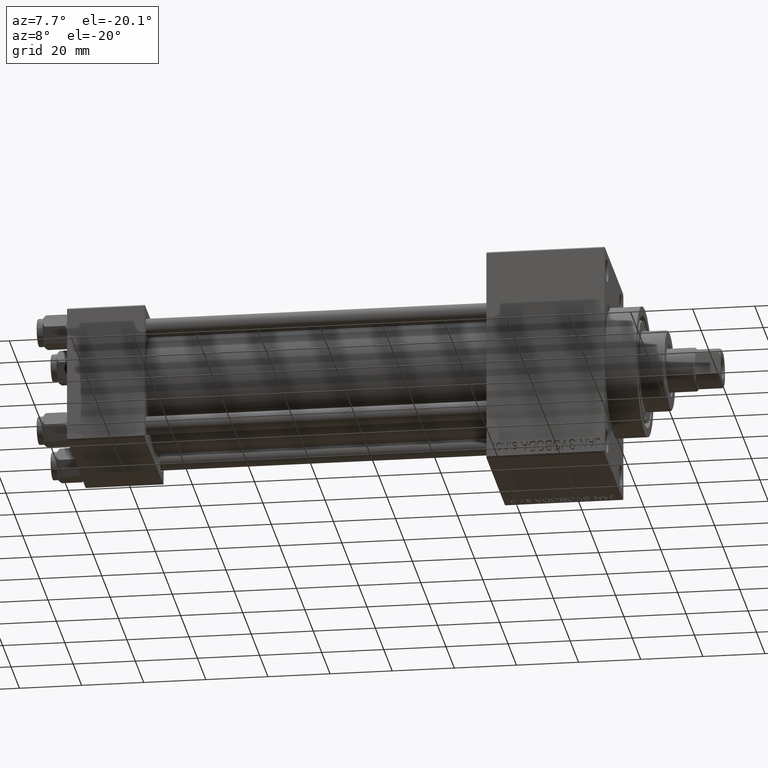
[diagram: clean part render]
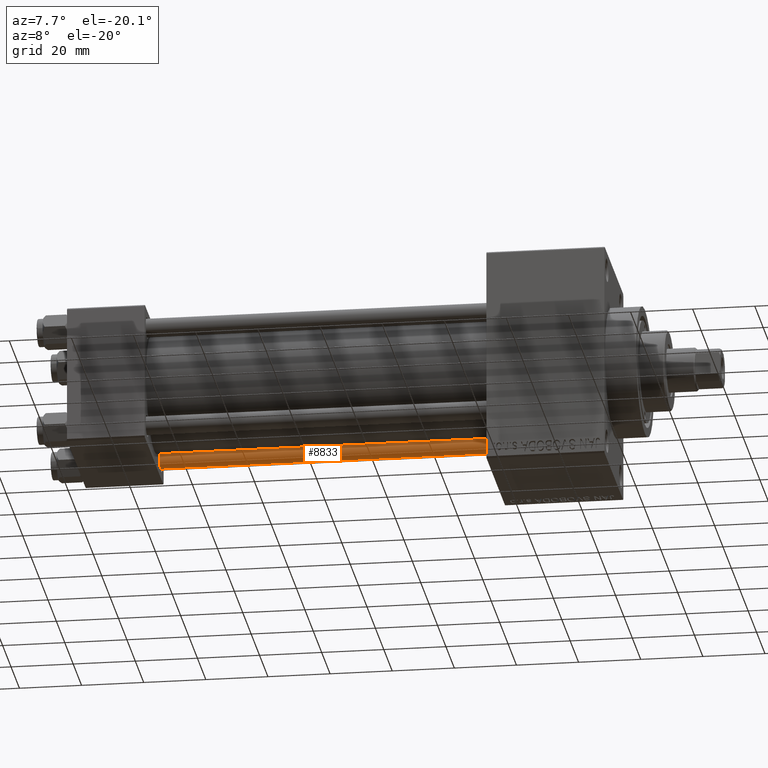
[diagram: same view with one face highlighted and labeled with its STEP entity id]
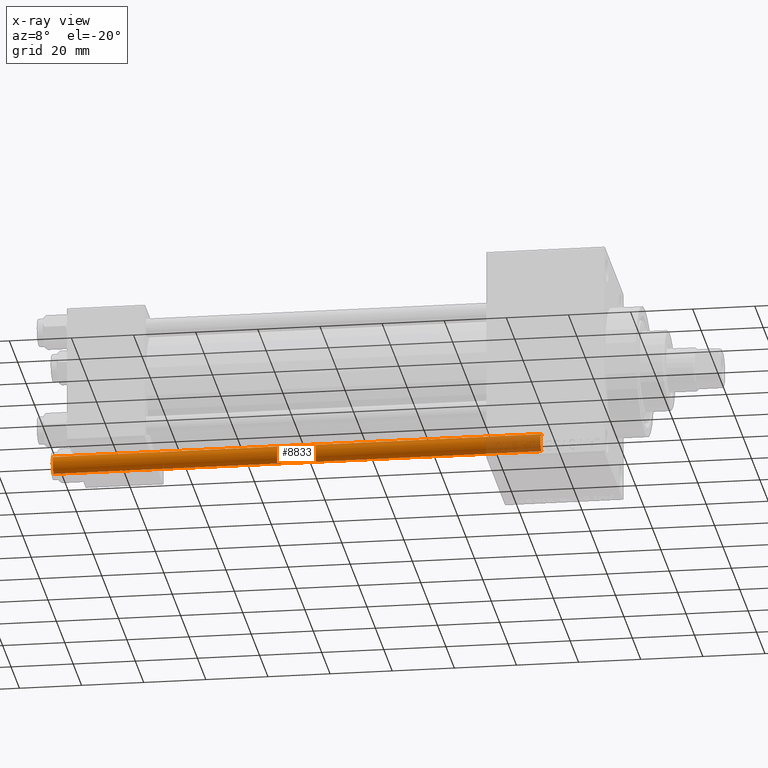
[diagram: x-ray of the same camera — body ghosted, the highlighted face saturated]
A machine part, auxiliary view. The second image highlights one B-rep face of the part: STEP entity #8833.
The next image is the same camera in x-ray: the body ghosted, the highlighted face saturated — about 11% of this face is hidden behind the body in this view.
In plain terms, the highlighted cylindrical surface (edge-blend (fillet) strip) has radius 3 mm, axis along (1, -0, 0).
Its self-contained STEP definition (entity closure, byte-faithful):
#328 = CARTESIAN_POINT ( 'NONE',  ( 3.000000000000000444, 3.673940397442060361E-16, 0.5000000000000281997 ) ) ;
#1701 = CARTESIAN_POINT ( 'NONE',  ( 0.000000000000000000, 0.000000000000000000, 158.0000000000000000 ) ) ;
#1764 = CIRCLE ( 'NONE', #36162, 3.000000000000000444 ) ;
#3180 = ORIENTED_EDGE ( 'NONE', *, *, #39549, .T. ) ;
#3237 = CARTESIAN_POINT ( 'NONE',  ( -3.000000000000000444, 0.000000000000000000, 157.5000000000000000 ) ) ;
#3410 = AXIS2_PLACEMENT_3D ( 'NONE', #9085, #27983, #16019 ) ;
#4819 = FACE_OUTER_BOUND ( 'NONE', #7841, .T. ) ;
#5479 = VERTEX_POINT ( 'NONE', #3237 ) ;
#5750 = LINE ( 'NONE', #30853, #38729 ) ;
#7841 = EDGE_LOOP ( 'NONE', ( #27497, #3180, #42546, #25785 ) ) ;
#8508 = LINE ( 'NONE', #23099, #43315 ) ;
#8833 = ADVANCED_FACE ( 'NONE', ( #4819 ), #45034, .T. ) ;
#9085 = CARTESIAN_POINT ( 'NONE',  ( 0.000000000000000000, 0.000000000000000000, 0.5000000000000281997 ) ) ;
#14566 = EDGE_CURVE ( 'NONE', #34220, #31174, #40079, .T. ) ;
#16019 = DIRECTION ( 'NONE',  ( 1.000000000000000000, 0.000000000000000000, 0.000000000000000000 ) ) ;
#19140 = DIRECTION ( 'NONE',  ( 0.000000000000000000, 0.000000000000000000, -1.000000000000000000 ) ) ;
#20458 = DIRECTION ( 'NONE',  ( -0.000000000000000000, -0.000000000000000000, -1.000000000000000000 ) ) ;
#21678 = AXIS2_PLACEMENT_3D ( 'NONE', #1701, #42556, #34472 ) ;
#21738 = CARTESIAN_POINT ( 'NONE',  ( 3.000000000000000444, 3.673940397442060361E-16, 157.5000000000000000 ) ) ;
#23099 = CARTESIAN_POINT ( 'NONE',  ( -3.000000000000000444, 0.000000000000000000, 158.0000000000000000 ) ) ;
#23226 = CARTESIAN_POINT ( 'NONE',  ( 0.000000000000000000, 0.000000000000000000, 157.5000000000000000 ) ) ;
#24209 = EDGE_CURVE ( 'NONE', #5479, #34220, #8508, .T. ) ;
#25785 = ORIENTED_EDGE ( 'NONE', *, *, #14566, .T. ) ;
#26705 = CARTESIAN_POINT ( 'NONE',  ( -3.000000000000000444, 0.000000000000000000, 0.5000000000000281997 ) ) ;
#27497 = ORIENTED_EDGE ( 'NONE', *, *, #37696, .F. ) ;
#27983 = DIRECTION ( 'NONE',  ( -0.000000000000000000, -0.000000000000000000, 1.000000000000000000 ) ) ;
#30853 = CARTESIAN_POINT ( 'NONE',  ( 3.000000000000000444, 3.673940397442060361E-16, 158.0000000000000000 ) ) ;
#31093 = DIRECTION ( 'NONE',  ( -0.000000000000000000, -0.000000000000000000, -1.000000000000000000 ) ) ;
#31174 = VERTEX_POINT ( 'NONE', #328 ) ;
#34220 = VERTEX_POINT ( 'NONE', #26705 ) ;
#34472 = DIRECTION ( 'NONE',  ( -1.000000000000000000, 0.000000000000000000, 0.000000000000000000 ) ) ;
#36162 = AXIS2_PLACEMENT_3D ( 'NONE', #23226, #19140, #37813 ) ;
#37696 = EDGE_CURVE ( 'NONE', #46948, #31174, #5750, .T. ) ;
#37813 = DIRECTION ( 'NONE',  ( 1.000000000000000000, 0.000000000000000000, 0.000000000000000000 ) ) ;
#38729 = VECTOR ( 'NONE', #31093, 1000.000000000000000 ) ;
#39549 = EDGE_CURVE ( 'NONE', #46948, #5479, #1764, .T. ) ;
#40079 = CIRCLE ( 'NONE', #3410, 3.000000000000000444 ) ;
#42546 = ORIENTED_EDGE ( 'NONE', *, *, #24209, .T. ) ;
#42556 = DIRECTION ( 'NONE',  ( -0.000000000000000000, -0.000000000000000000, -1.000000000000000000 ) ) ;
#43315 = VECTOR ( 'NONE', #20458, 1000.000000000000000 ) ;
#45034 = CYLINDRICAL_SURFACE ( 'NONE', #21678, 3.000000000000000444 ) ;
#46948 = VERTEX_POINT ( 'NONE', #21738 ) ;